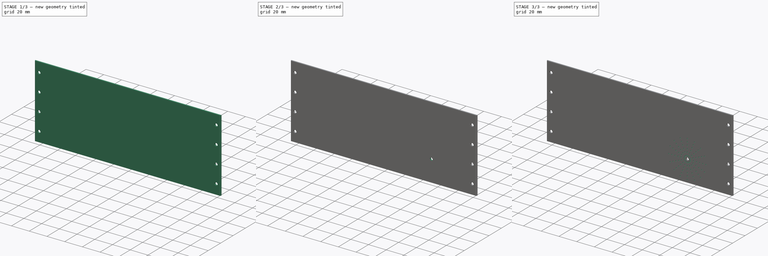
[diagram: build sequence overview — one tinted view per stage of 3, left to right]
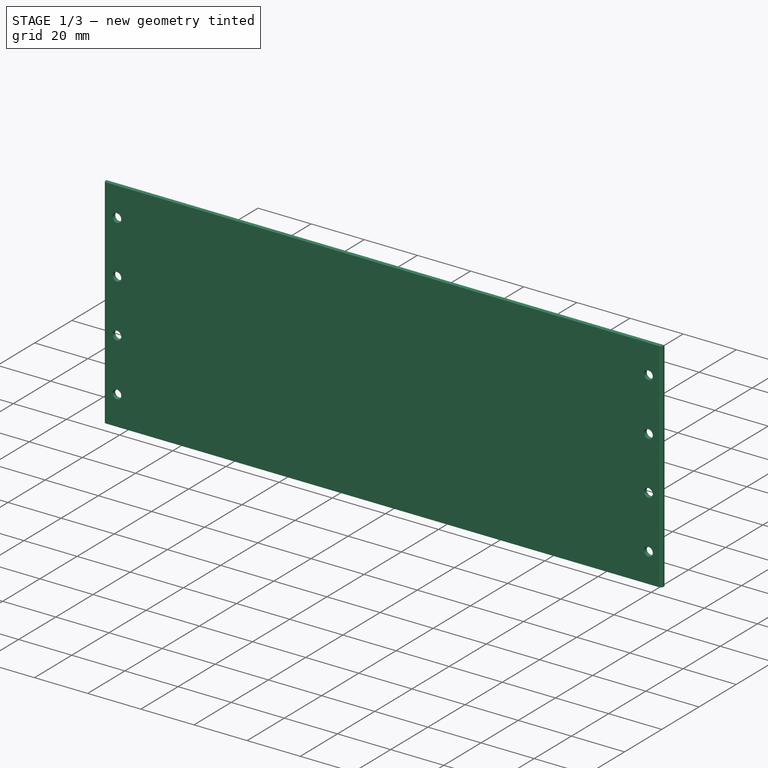
[diagram: stage 1 of 3 — iso view after this stage's code; geometry added in this stage tinted green]
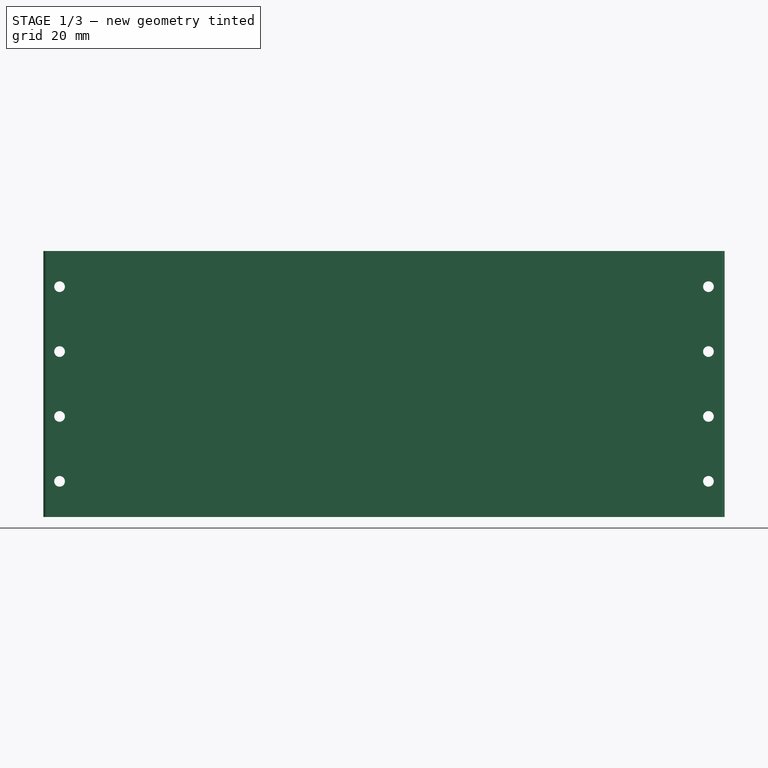
[diagram: stage 1 of 3 — front view after this stage's code; geometry added in this stage tinted green]
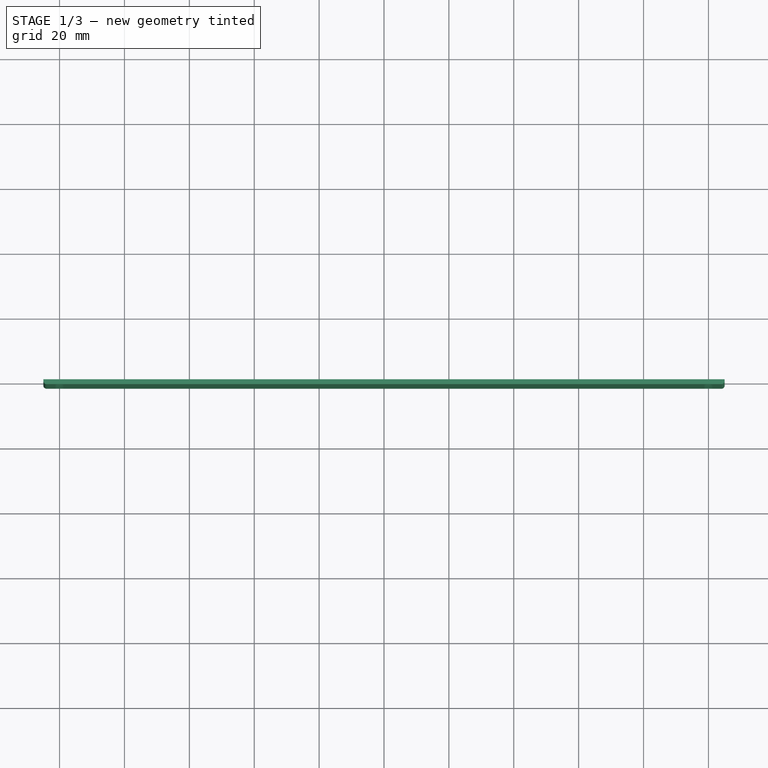
[diagram: stage 1 of 3 — top view after this stage's code; geometry added in this stage tinted green]
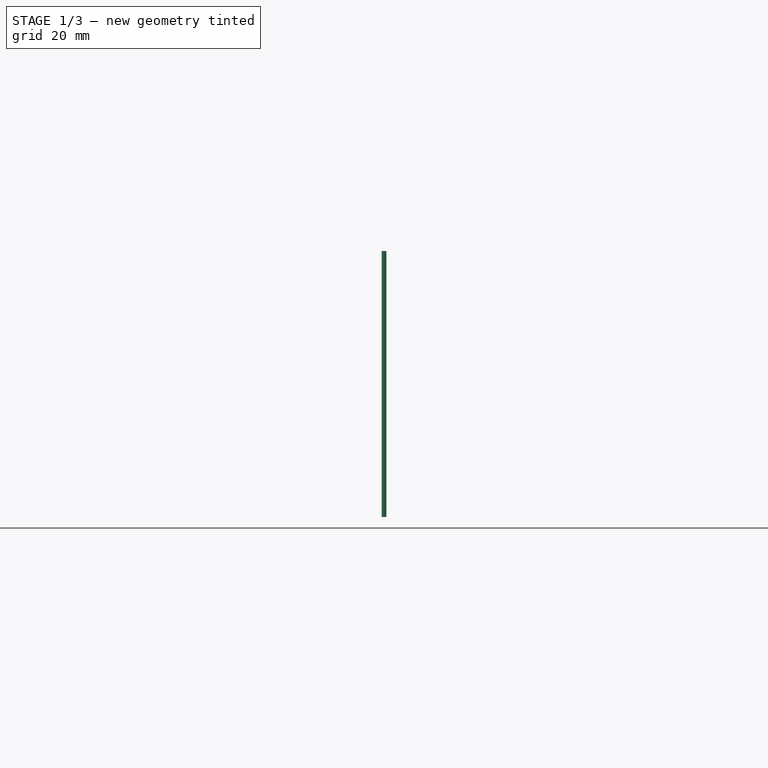
[diagram: stage 1 of 3 — right view after this stage's code; geometry added in this stage tinted green]
FCSTD DOCUMENT  (FreeCAD 1.0R39109 (Git))
Label: wall_speaker
License: All rights reserved
LicenseURL: https://en.wikipedia.org/wiki/All_rights_reserved
objects: Sketcher::SketchObject×3, PartDesign::Pocket×2, PartDesign::Pad×1, PartDesign::Fillet×1, PartDesign::Line×1, PartDesign::PolarPattern×1, PartDesign::Body×1
note: 22 computed .brp shape members not serialized (recipe doc carries the construction recipe); baked Part::Feature solids carry a one-line shape summary decoded from their .brp

FEATURE [Sketcher::SketchObject] Sketch
  ArcFitTolerance = 1e-06
  AttachmentSupport = -> [XZ_Plane]
  FullyConstrained = true
  MakeInternals = false
  MapMode = 5
  Placement = pos=(0,0,0) rot=(1,0,0;1.5708rad)
  sketch-geometry (18):
    g0: LineSegment StartX=-105 StartY=41 StartZ=0 EndX=-105 EndY=-41 EndZ=0
    g1: LineSegment StartX=-105 StartY=-41 StartZ=0 EndX=105 EndY=-41 EndZ=0
    g2: LineSegment StartX=105 StartY=-41 StartZ=0 EndX=105 EndY=41 EndZ=0
    g3: LineSegment StartX=105 StartY=41 StartZ=0 EndX=-105 EndY=41 EndZ=0
    g4: GeomPoint [constr] X=0 Y=0 Z=0
    g5: LineSegment [constr] StartX=-105 StartY=40 StartZ=0 EndX=-105 EndY=-40 EndZ=0
    g6: LineSegment [constr] StartX=-105 StartY=-40 StartZ=0 EndX=105 EndY=-40 EndZ=0
    g7: LineSegment [constr] StartX=105 StartY=-40 StartZ=0 EndX=105 EndY=40 EndZ=0
    g8: LineSegment [constr] StartX=105 StartY=40 StartZ=0 EndX=-105 EndY=40 EndZ=0
    g9: GeomPoint [constr] X=0 Y=0 Z=0
    g10: Circle CenterX=100 CenterY=30 CenterZ=0 NormalX=0 NormalY=0 NormalZ=1 AngleXU=0 Radius=1.65
    g11: Circle CenterX=100 CenterY=10 CenterZ=0 NormalX=0 NormalY=0 NormalZ=1 AngleXU=0 Radius=1.65
    g12: Circle CenterX=100 CenterY=-30 CenterZ=0 NormalX=0 NormalY=0 NormalZ=1 AngleXU=0 Radius=1.65
    g13: Circle CenterX=100 CenterY=-10 CenterZ=0 NormalX=0 NormalY=0 NormalZ=1 AngleXU=0 Radius=1.65
    g14: Circle CenterX=-100 CenterY=30 CenterZ=0 NormalX=0 NormalY=0 NormalZ=1 AngleXU=0 Radius=1.65
    g15: Circle CenterX=-100 CenterY=10 CenterZ=0 NormalX=0 NormalY=0 NormalZ=1 AngleXU=0 Radius=1.65
    g16: Circle CenterX=-100 CenterY=-30 CenterZ=0 NormalX=0 NormalY=0 NormalZ=1 AngleXU=0 Radius=1.65
    g17: Circle CenterX=-100 CenterY=-10 CenterZ=0 NormalX=0 NormalY=0 NormalZ=1 AngleXU=0 Radius=1.65
  constraints (42):
    c: Coincident(g0,g1)
    c: Coincident(g1,g2)
    c: Coincident(g2,g3)
    c: Coincident(g3,g0)
    c: Vertical(g0)
    c: Vertical(g2)
    c: Horizontal(g1)
    c: Horizontal(g3)
    c: Symmetric(g2,g0,g4)
    c: Coincident(g4,g-1)
    c: Coincident(g5,g6)
    c: Coincident(g6,g7)
    c: Coincident(g7,g8)
    c: Coincident(g8,g5)
    c: Vertical(g5)
    c: Vertical(g7)
    c: Horizontal(g6)
    c: Horizontal(g8)
    c: Symmetric(g7,g5,g9)
    c: Coincident(g9,g4)
    c: PointOnObject(g6,g2)
    c: DistanceY(g6,g7) = 80
    c: DistanceY(g1,g6) = 1
    c: DistanceX(g1,g1) = 210
    c: Equal(g10,g11)
    c: Radius(g11) = 1.65
    c: DistanceY(g11,g10) = 20
    c: Vertical(g10,g11)
    c: DistanceX(g10,g7) = 5
    c: DistanceY(g10,g7) = 10
    c: Equal(g12,g13)
    c: Radius(g13) = 1.65
    c: Equal(g14,g15)
    c: Radius(g15) = 1.65
    c: Equal(g16,g17)
    c: Radius(g17) = 1.65
    c: Symmetric(g10,g12,g-1)
    c: Symmetric(g13,g11,g-1)
    c: Symmetric(g12,g16,g-2)
    c: Symmetric(g17,g13,g-2)
    c: Symmetric(g11,g15,g-2)
    c: Symmetric(g14,g10,g-2)
FEATURE [PartDesign::Pad] Pad  label="BasePad"
  Direction = (0,-1,2e-16)
  Length = 1.5
  Length2 = 10
  Placement = pos=(0,0,0) rot=(1,0,0;1.5708rad)
  Profile = -> Sketch
  ReferenceAxis = -> Sketch [N_Axis]
  Refine = true
  Suppressed = false
  Type = 0
FEATURE [PartDesign::Fillet] Fillet
  Base = -> Pad [Edge10,Edge4]
  BaseFeature = -> Pad
  Placement = pos=(0,0,0) rot=(1,0,0;1.5708rad)
  Radius = 1
  Refine = true
  SupportTransform = false
  Suppressed = false
  UseAllEdges = false
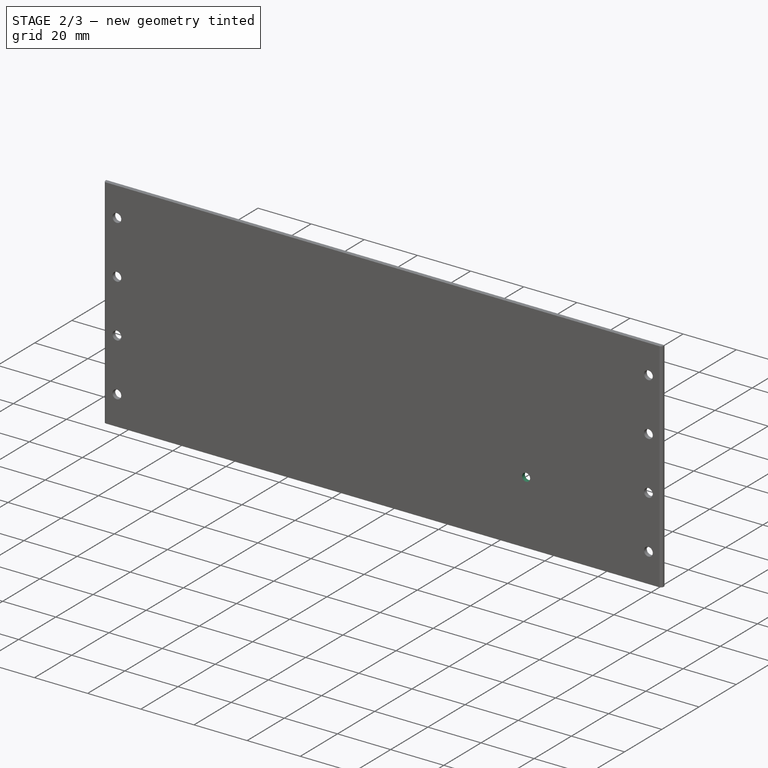
[diagram: stage 2 of 3 — iso view after this stage's code; geometry added in this stage tinted green]
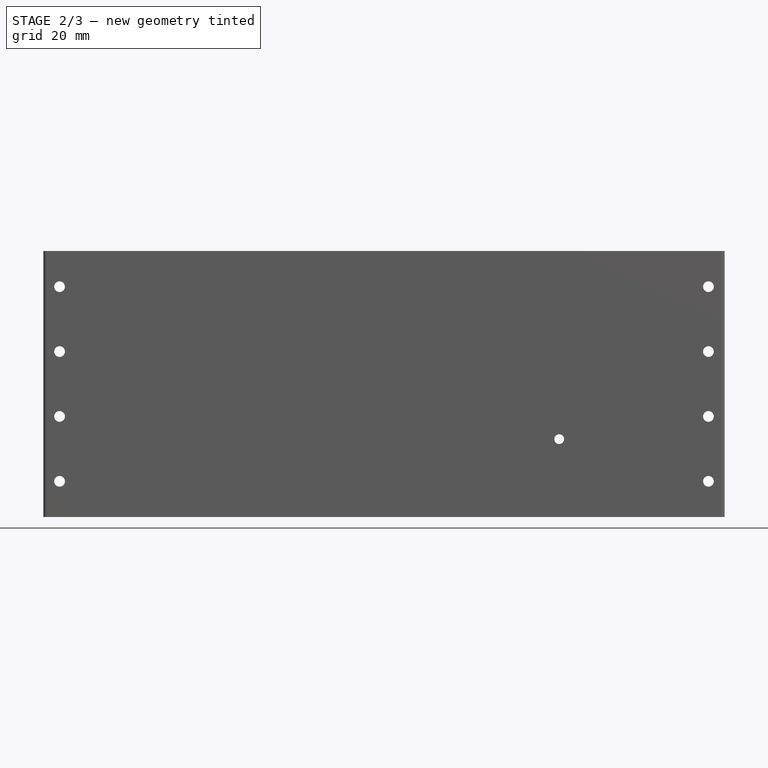
[diagram: stage 2 of 3 — front view after this stage's code; geometry added in this stage tinted green]
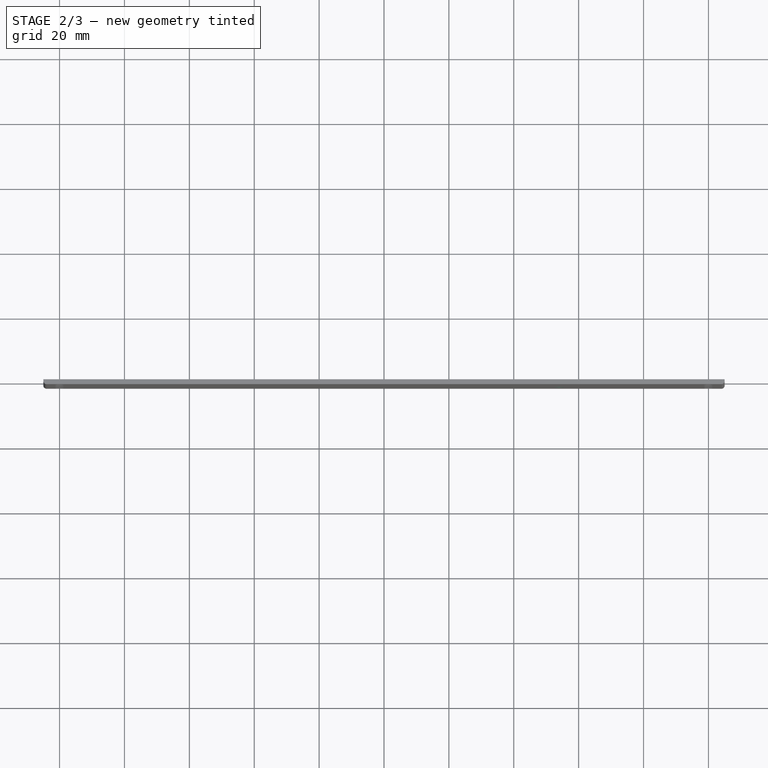
[diagram: stage 2 of 3 — top view after this stage's code; geometry added in this stage tinted green]
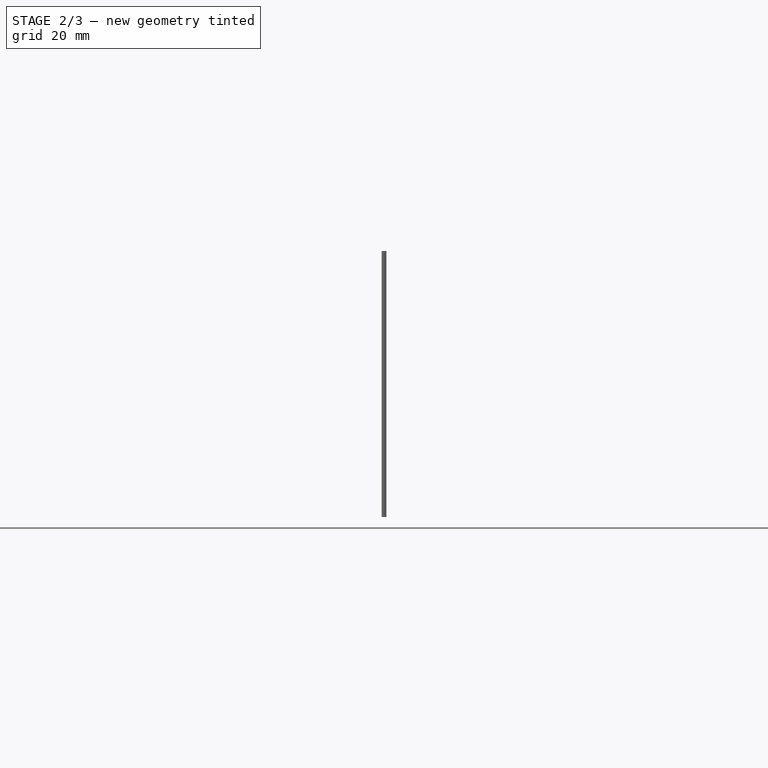
[diagram: stage 2 of 3 — right view after this stage's code; geometry added in this stage tinted green]
FEATURE [Sketcher::SketchObject] Sketch002
  ArcFitTolerance = 1e-06
  AttachmentSupport = -> [Fillet]
  ExternalGeometry = -> [Fillet]
  FullyConstrained = true
  MakeInternals = false
  MapMode = 5
  Placement = pos=(0,-1.5,0) rot=(1,0,0;1.5708rad)
  sketch-geometry (4):
    g0: Circle CenterX=54 CenterY=-17 CenterZ=0 NormalX=0 NormalY=0 NormalZ=1 AngleXU=0 Radius=1.5
    g1: LineSegment [constr] StartX=104 StartY=-41 StartZ=0 EndX=89 EndY=-41 EndZ=0
    g2: LineSegment [constr] StartX=89 StartY=-41 StartZ=0 EndX=19 EndY=-41 EndZ=0
    g3: GeomPoint [constr] X=54 Y=-41 Z=0
  constraints (10):
    c: Radius(g0) = 1.5
    c: DistanceY(g-3,g0) = 24
    c: Coincident(g-3,g1)
    c: PointOnObject(g1,g-3)
    c: Coincident(g1,g2)
    c: PointOnObject(g2,g-3)
    c: DistanceX(g2,g2) = 70
    c: DistanceX(g1,g1) = 15
    c: Symmetric(g2,g2,g3)
    c: Vertical(g3,g0)
FEATURE [PartDesign::Pocket] Pocket  label="BaseSpeakerPocket"
  BaseFeature = -> Fillet
  Direction = (0,1,-2e-16)
  Length = 5
  Length2 = 5
  Placement = pos=(0,0,0) rot=(1,0,0;1.5708rad)
  Profile = -> Sketch002
  ReferenceAxis = -> Sketch002 [N_Axis]
  Refine = true
  Suppressed = false
  Type = 1
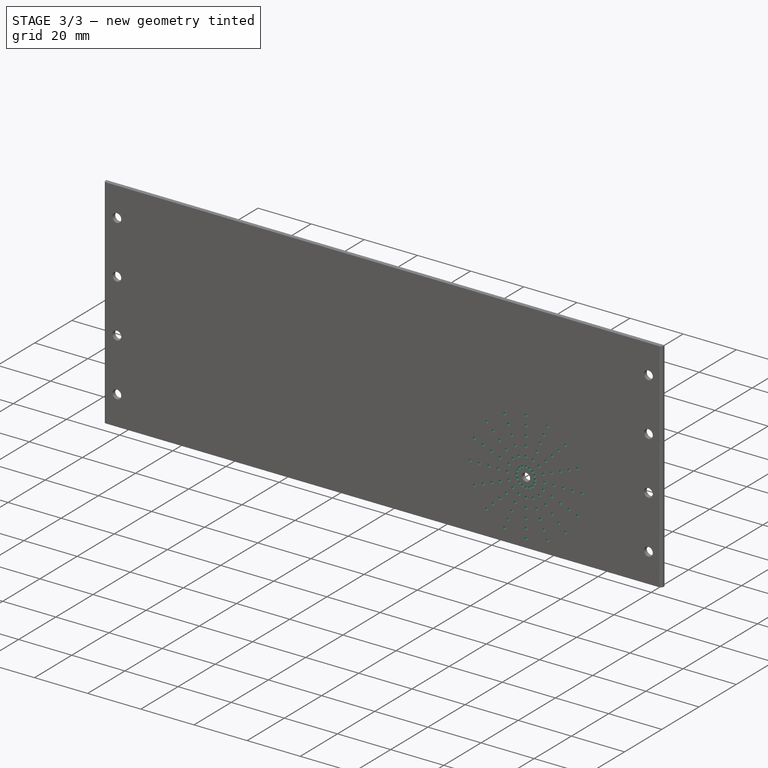
[diagram: stage 3 of 3 — iso view after this stage's code; geometry added in this stage tinted green]
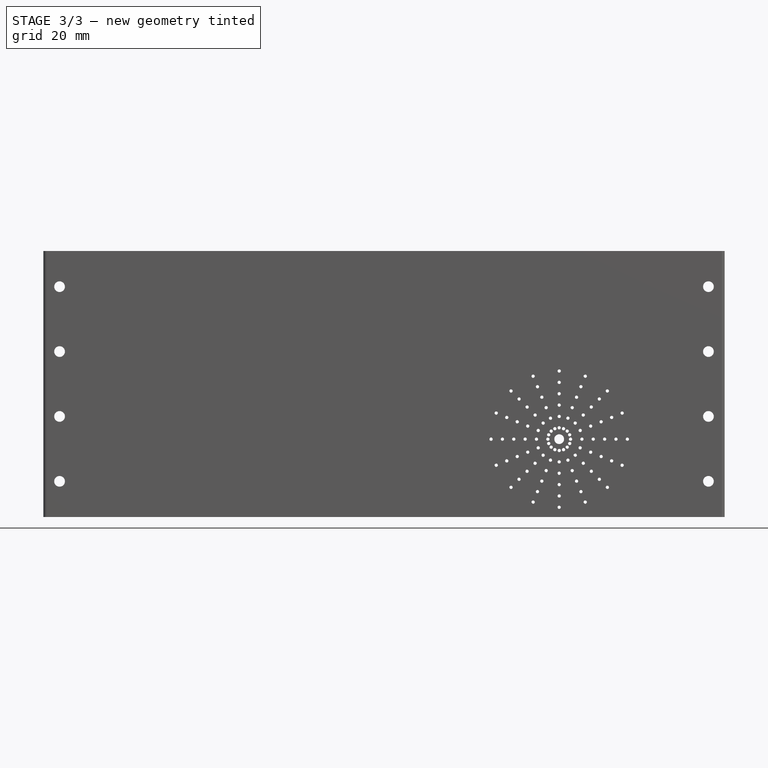
[diagram: stage 3 of 3 — front view after this stage's code; geometry added in this stage tinted green]
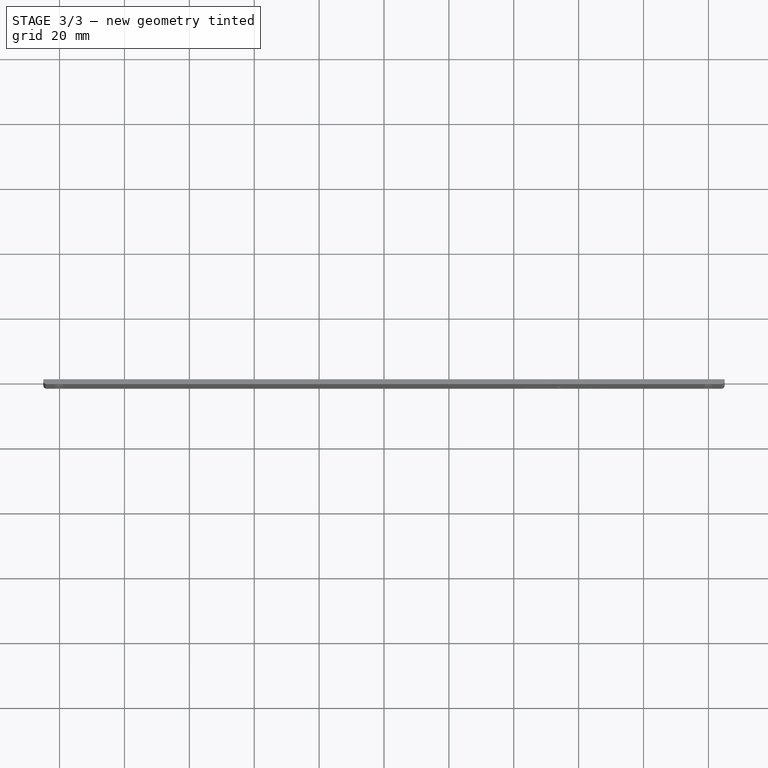
[diagram: stage 3 of 3 — top view after this stage's code; geometry added in this stage tinted green]
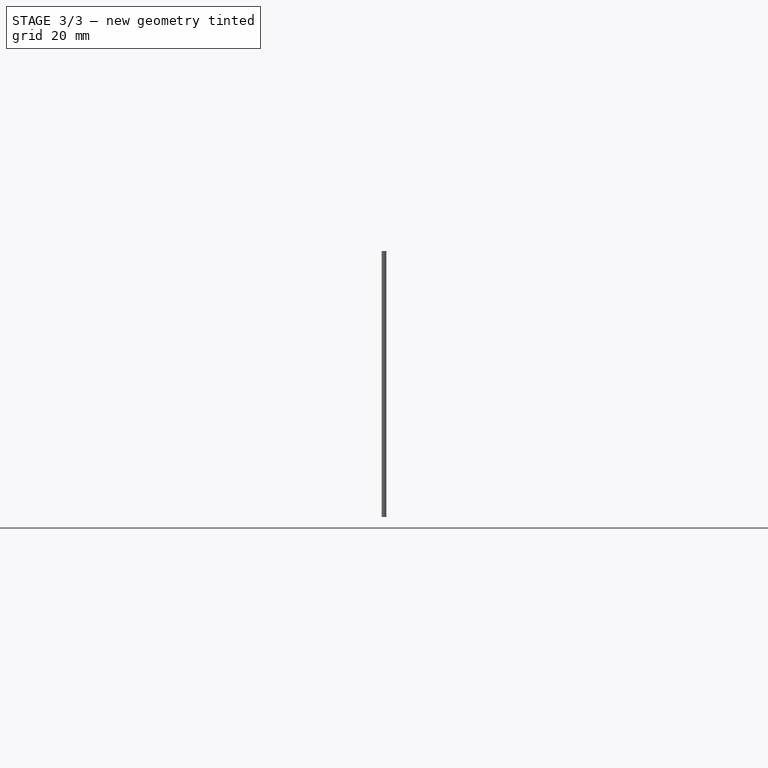
[diagram: stage 3 of 3 — right view after this stage's code; geometry added in this stage tinted green]
FEATURE [Sketcher::SketchObject] Sketch003
  ArcFitTolerance = 1e-06
  AttachmentSupport = -> [Pocket]
  ExternalGeometry = -> [Pocket]
  FullyConstrained = true
  MakeInternals = false
  MapMode = 5
  Placement = pos=(0,-1.5,0) rot=(1,0,0;1.5708rad)
  sketch-geometry (12):
    g0: Circle CenterX=54 CenterY=-20.5 CenterZ=0 NormalX=0 NormalY=0 NormalZ=1 AngleXU=0 Radius=0.5
    g1: Circle CenterX=54 CenterY=-24 CenterZ=0 NormalX=0 NormalY=0 NormalZ=1 AngleXU=0 Radius=0.5
    g2: Circle CenterX=54 CenterY=-27.5 CenterZ=0 NormalX=0 NormalY=0 NormalZ=1 AngleXU=0 Radius=0.5
    g3: Circle CenterX=54 CenterY=-31 CenterZ=0 NormalX=0 NormalY=0 NormalZ=1 AngleXU=0 Radius=0.5
    g4: LineSegment [constr] StartX=54 StartY=-17 StartZ=0 EndX=54 EndY=-20.5 EndZ=0
    g5: LineSegment [constr] StartX=54 StartY=-20.5 StartZ=0 EndX=54 EndY=-24 EndZ=0
    g6: LineSegment [constr] StartX=54 StartY=-24 StartZ=0 EndX=54 EndY=-27.5 EndZ=0
    g7: LineSegment [constr] StartX=54 StartY=-27.5 StartZ=0 EndX=54 EndY=-31 EndZ=0
    g8: LineSegment [constr] StartX=54 StartY=-31 StartZ=0 EndX=54 EndY=-34.5 EndZ=0
    g9: LineSegment [constr] StartX=54 StartY=-34.5 StartZ=0 EndX=54 EndY=-38 EndZ=0
    g10: Circle CenterX=54 CenterY=-34.5 CenterZ=0 NormalX=0 NormalY=0 NormalZ=1 AngleXU=0 Radius=0.5
    g11: Circle CenterX=54 CenterY=-38 CenterZ=0 NormalX=0 NormalY=0 NormalZ=1 AngleXU=0 Radius=0.5
  constraints (30):
    c: Vertical(g1,g2)
    c: Vertical(g2,g3)
    c: Vertical(g-3,g1)
    c: Coincident(g4,g-3)
    c: Coincident(g4,g0)
    c: Vertical(g4)
    c: Coincident(g4,g5)
    c: Coincident(g5,g1)
    c: Coincident(g5,g6)
    c: Coincident(g6,g2)
    c: Coincident(g6,g7)
    c: Coincident(g7,g3)
    c: Radius(g0) = 0.5
    c: Equal(g1,g2)
    c: Equal(g2,g3)
    c: Equal(g3,g0)
    c: Equal(g7,g6)
    c: Equal(g6,g5)
    c: Equal(g5,g4)
    c: DistanceY(g7,g7) = 3.5
    c: Coincident(g8,g3)
    c: Vertical(g8)
    c: Coincident(g8,g9)
    c: Vertical(g9)
    c: Coincident(g10,g8)
    c: Coincident(g11,g9)
    c: Equal(g11,g10)
    c: Equal(g3,g10)
    c: Equal(g8,g7)
    c: Equal(g9,g8)
FEATURE [PartDesign::Pocket] Pocket001  label="LinearPatternPocket"
  BaseFeature = -> Pocket
  Direction = (0,1,-2e-16)
  Length = 5
  Length2 = 5
  Placement = pos=(0,0,0) rot=(1,0,0;1.5708rad)
  Profile = -> Sketch003
  ReferenceAxis = -> Sketch003 [N_Axis]
  Refine = true
  Suppressed = false
  Type = 1
FEATURE [PartDesign::Line] DatumLine
  AttacherType = Attacher::AttachEngineLine
  AttachmentSupport = -> [Pocket001]
  Length = 20
  MapMode = 19
  Placement = pos=(54,-1.5,-17) rot=(1,0,0;1.5708rad)
  ResizeMode = 0
FEATURE [PartDesign::PolarPattern] PolarPattern
  Angle = 360
  Axis = -> DatumLine
  BaseFeature = -> Pocket001
  Mode = 0
  Occurrences = 16
  Offset = 120
  Originals = -> [Pocket001]
  Placement = pos=(0,0,0) rot=(1,0,0;1.5708rad)
  Refine = true
  Suppressed = false
  TransformMode = 0
FEATURE [PartDesign::Body] Body  label="wall_speaker1"
  AllowCompound = false
  Group = -> [Sketch,Pad,Fillet,Sketch002,Pocket,Sketch003,Pocket001,DatumLine,PolarPattern]
  Origin = -> Origin
  Tip = -> PolarPattern
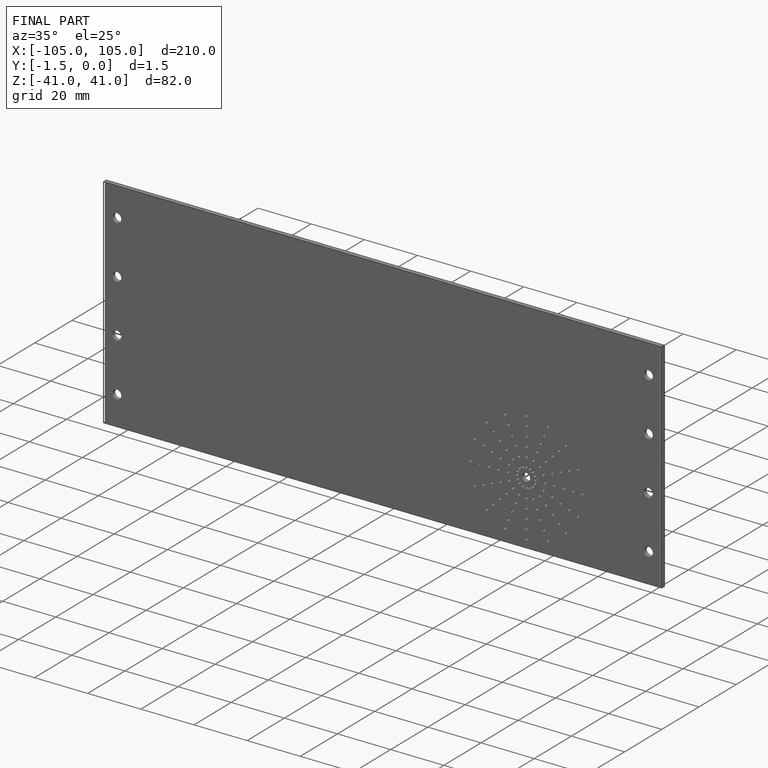
[diagram: finished part — iso view with bounding-box wireframe]
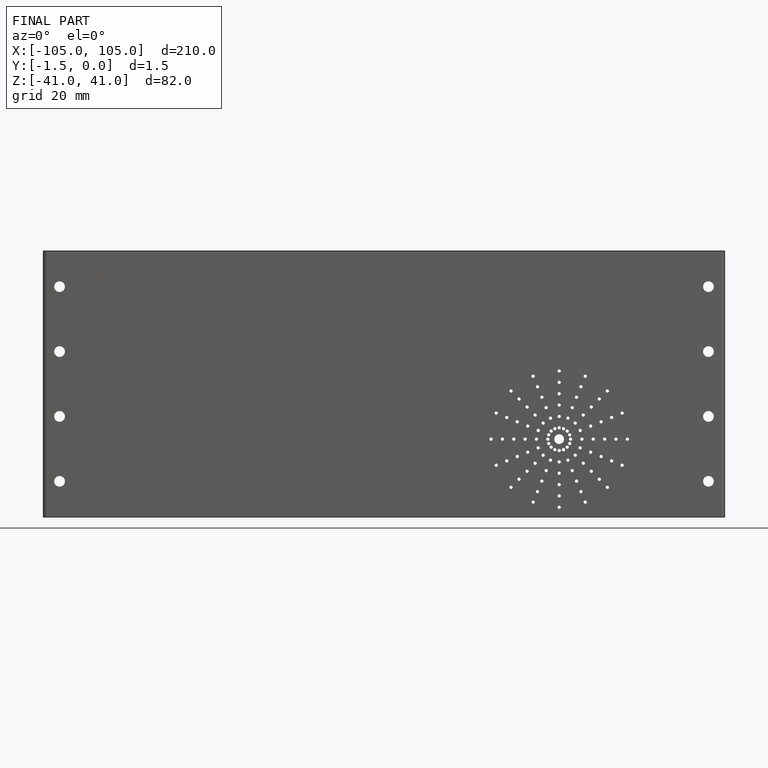
[diagram: finished part — front view with bounding-box wireframe]
